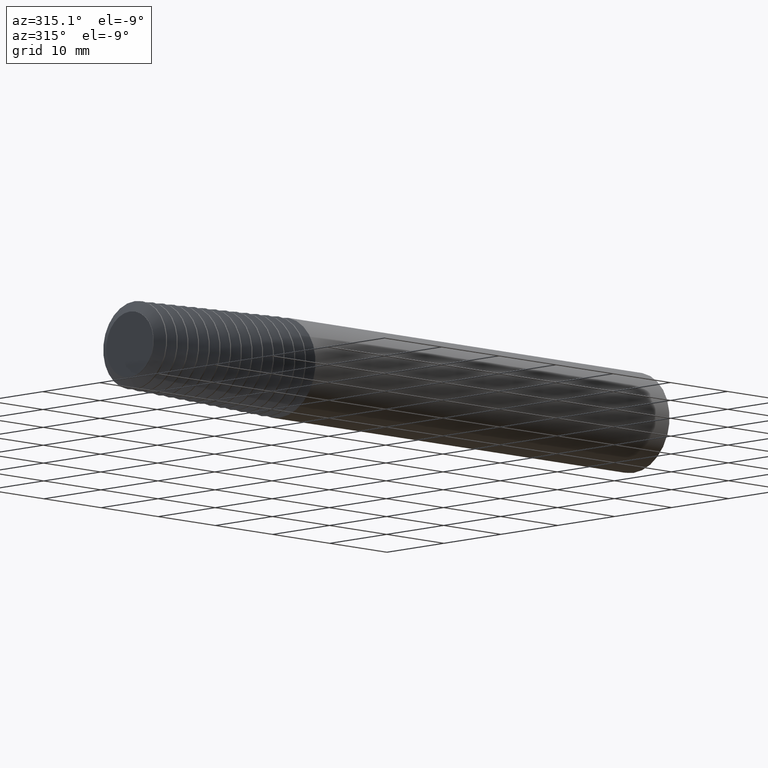
[diagram: clean part render]
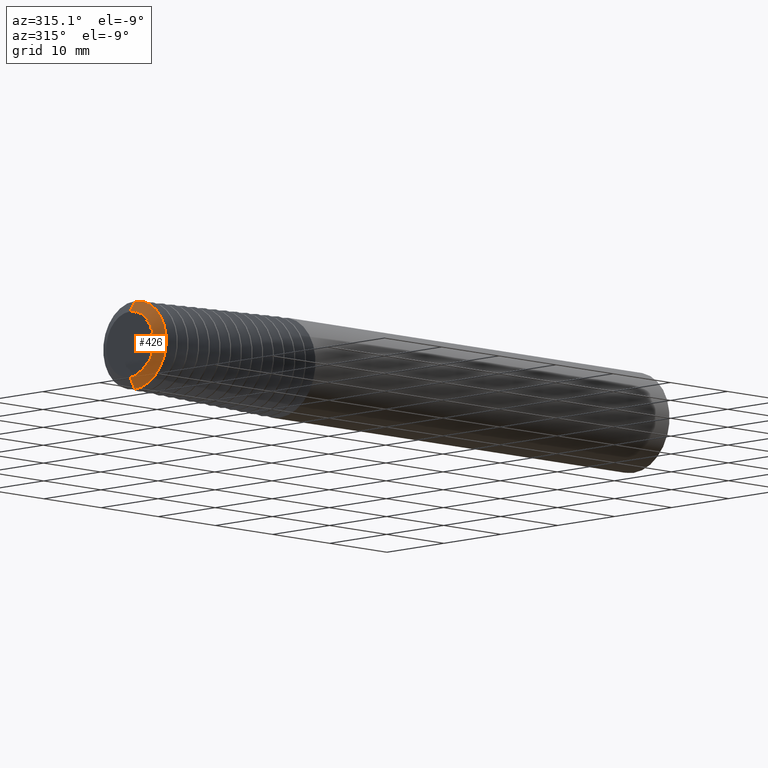
[diagram: same view with one face highlighted and labeled with its STEP entity id]
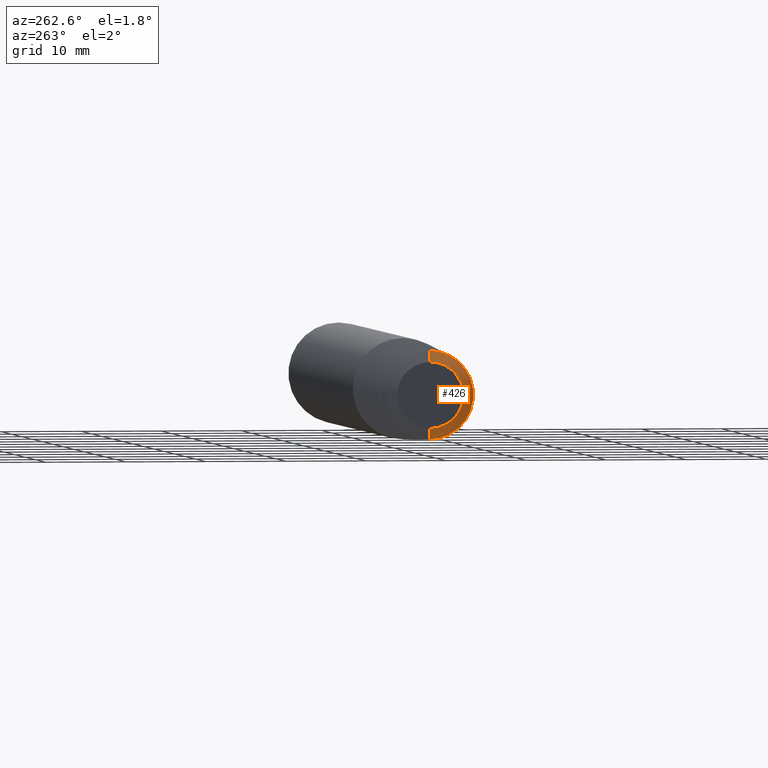
[diagram: same view with one face highlighted and labeled with its STEP entity id]
A machine part, auxiliary view. The second image highlights one B-rep face of the part: STEP entity #426.
A second angle (auxiliary view) of the same face is appended — the face is thin or edge-on in the first view.
In plain terms, the highlighted conical surface has half-angle 60.25 deg.
Its self-contained STEP definition (entity closure, byte-faithful):
#74 = DIRECTION ( 'NONE',  ( 0.000000000000000000, 0.000000000000000000, -1.000000000000000000 ) ) ;
#100 = ORIENTED_EDGE ( 'NONE', *, *, #3530, .T. ) ;
#164 = ORIENTED_EDGE ( 'NONE', *, *, #2479, .T. ) ;
#195 = CARTESIAN_POINT ( 'NONE',  ( -0.9732120658785875511, 0.000000000000000000, 0.000000000000000000 ) ) ;
#268 = AXIS2_PLACEMENT_3D ( 'NONE', #195, #801, #765 ) ;
#298 = CARTESIAN_POINT ( 'NONE',  ( -0.9732120658785875511, 1.991615723158785866E-17, 0.1626277653724670924 ) ) ;
#426 = ADVANCED_FACE ( 'NONE', ( #495 ), #2030, .T. ) ;
#448 = ORIENTED_EDGE ( 'NONE', *, *, #1516, .T. ) ;
#495 = FACE_OUTER_BOUND ( 'NONE', #866, .T. ) ;
#707 = CIRCLE ( 'NONE', #1558, 0.1626277653724670924 ) ;
#765 = DIRECTION ( 'NONE',  ( 0.000000000000000000, 0.000000000000000000, -1.000000000000000000 ) ) ;
#801 = DIRECTION ( 'NONE',  ( 1.000000000000000000, -0.000000000000000000, -0.000000000000000000 ) ) ;
#848 = DIRECTION ( 'NONE',  ( 0.000000000000000000, 0.000000000000000000, -1.000000000000000000 ) ) ;
#866 = EDGE_LOOP ( 'NONE', ( #1028, #164, #100, #448 ) ) ;
#928 = CARTESIAN_POINT ( 'NONE',  ( -0.9418634928725196920, 0.000000000000000000, -0.2174763923693814049 ) ) ;
#930 = VERTEX_POINT ( 'NONE', #3581 ) ;
#1028 = ORIENTED_EDGE ( 'NONE', *, *, #2329, .F. ) ;
#1109 = LINE ( 'NONE', #298, #2163 ) ;
#1187 = DIRECTION ( 'NONE',  ( 0.4962165036752091418, 1.063236899187654053E-16, 0.8681988144891417125 ) ) ;
#1489 = VERTEX_POINT ( 'NONE', #2571 ) ;
#1516 = EDGE_CURVE ( 'NONE', #1972, #1489, #3546, .T. ) ;
#1535 = CARTESIAN_POINT ( 'NONE',  ( -0.9732120658785875511, 0.000000000000000000, 0.000000000000000000 ) ) ;
#1558 = AXIS2_PLACEMENT_3D ( 'NONE', #1535, #2691, #74 ) ;
#1573 = VERTEX_POINT ( 'NONE', #3490 ) ;
#1756 = CARTESIAN_POINT ( 'NONE',  ( -0.9732120658785875511, 0.000000000000000000, -0.1626277653724670924 ) ) ;
#1972 = VERTEX_POINT ( 'NONE', #928 ) ;
#2030 = CONICAL_SURFACE ( 'NONE', #268, 0.1626277653724670924, 1.051560874326582518 ) ;
#2163 = VECTOR ( 'NONE', #1187, 39.37007874015748854 ) ;
#2329 = EDGE_CURVE ( 'NONE', #1573, #1489, #1109, .T. ) ;
#2389 = LINE ( 'NONE', #1756, #2506 ) ;
#2479 = EDGE_CURVE ( 'NONE', #1573, #930, #707, .T. ) ;
#2506 = VECTOR ( 'NONE', #2925, 39.37007874015748854 ) ;
#2571 = CARTESIAN_POINT ( 'NONE',  ( -0.9418634928725196920, 2.664406940163954384E-17, 0.2174763923693814049 ) ) ;
#2691 = DIRECTION ( 'NONE',  ( 1.000000000000000000, -0.000000000000000000, -0.000000000000000000 ) ) ;
#2925 = DIRECTION ( 'NONE',  ( 0.4962165036752091418, 0.000000000000000000, -0.8681988144891417125 ) ) ;
#3117 = AXIS2_PLACEMENT_3D ( 'NONE', #3181, #3200, #848 ) ;
#3181 = CARTESIAN_POINT ( 'NONE',  ( -0.9418634928725196920, 0.000000000000000000, 0.000000000000000000 ) ) ;
#3200 = DIRECTION ( 'NONE',  ( -1.000000000000000000, -0.000000000000000000, -0.000000000000000000 ) ) ;
#3490 = CARTESIAN_POINT ( 'NONE',  ( -0.9732120658785875511, 1.991615723158786482E-17, 0.1626277653724670924 ) ) ;
#3530 = EDGE_CURVE ( 'NONE', #930, #1972, #2389, .T. ) ;
#3546 = CIRCLE ( 'NONE', #3117, 0.2174763923693814049 ) ;
#3581 = CARTESIAN_POINT ( 'NONE',  ( -0.9732120658785875511, 0.000000000000000000, -0.1626277653724670924 ) ) ;